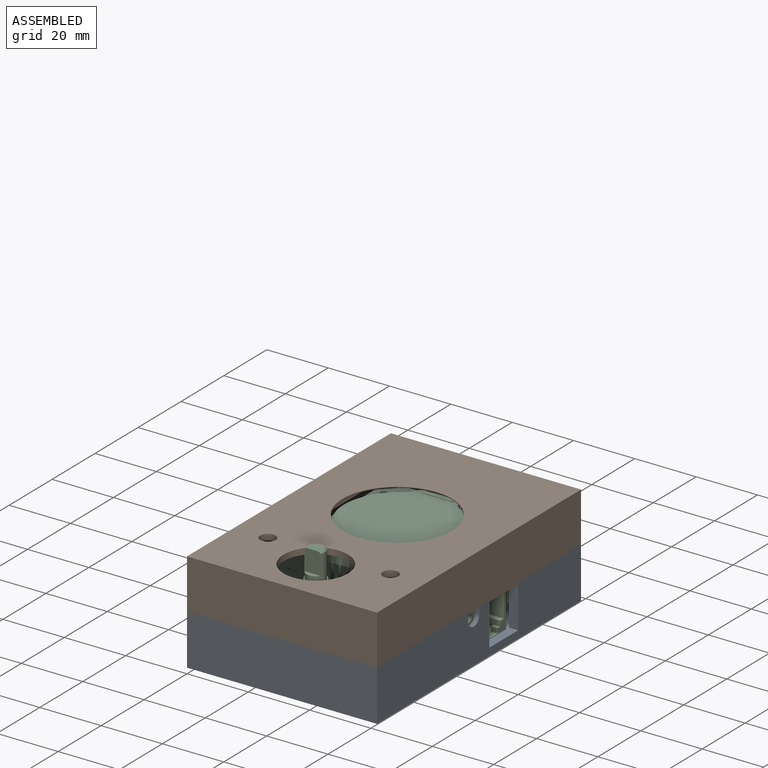
[diagram: assembled view]
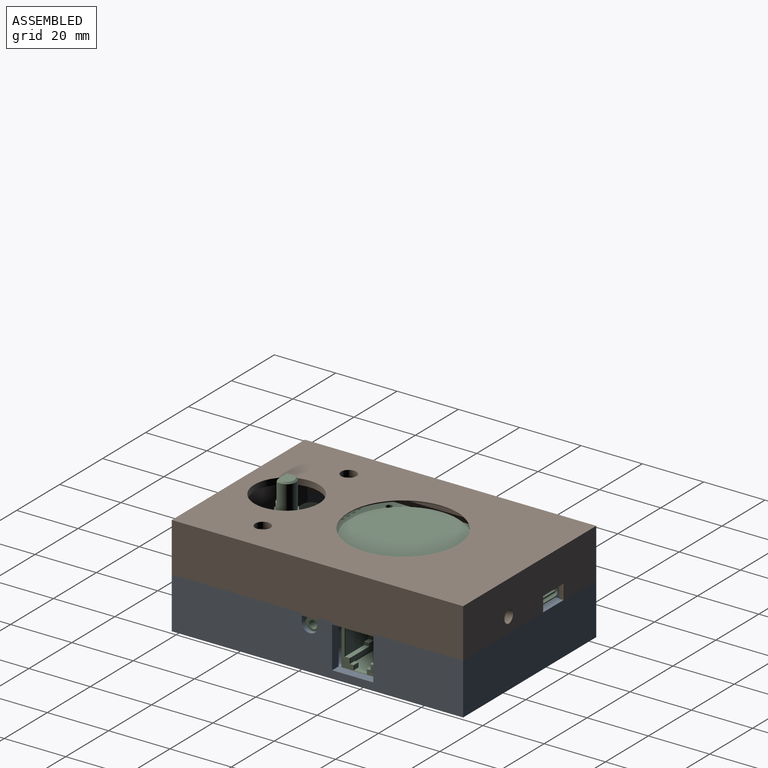
[diagram: assembled view, second angle]
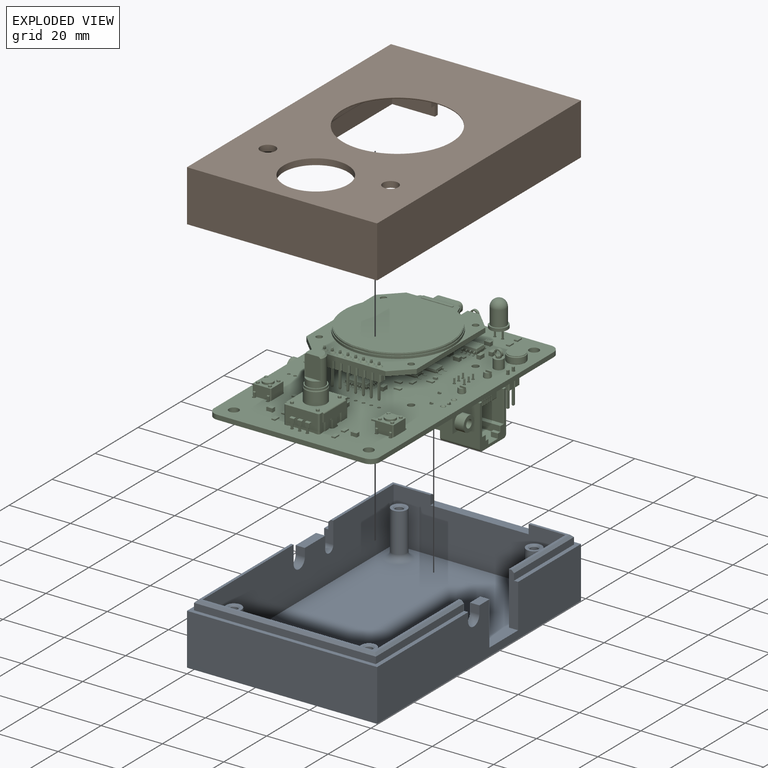
[diagram: exploded view]
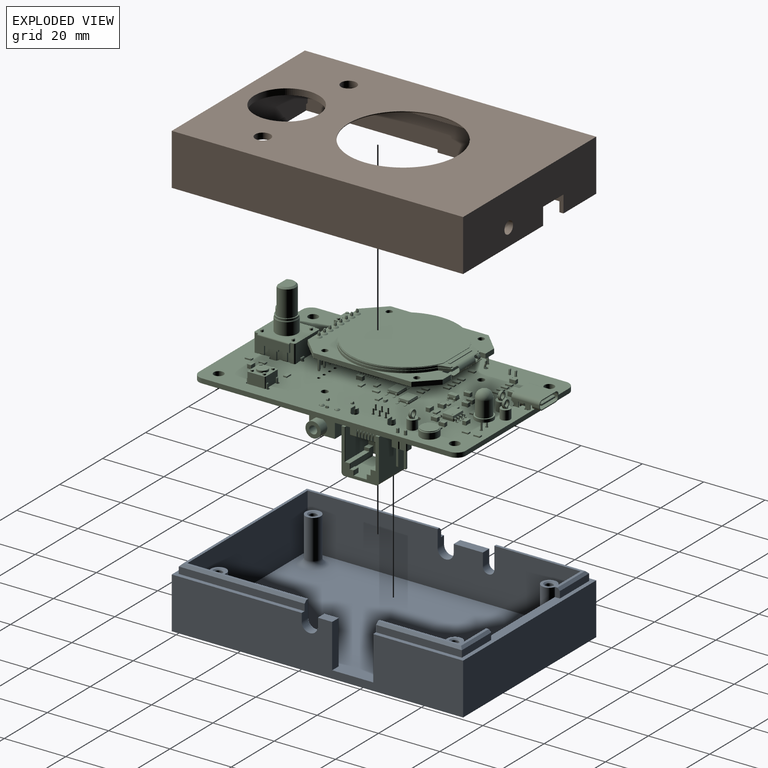
[diagram: exploded view, second angle]
FCSTD DOCUMENT  (FreeCAD 1.0R39319 (Git))
Label: Assembly
License: All rights reserved
objects: App::FeaturePython×4, App::Link×3, Assembly::JointGroup×1, Assembly::AssemblyObject×1
EXTERNAL_REF file=PCB_Rev2.FCStd obj=PCB_Rev2_1
EXTERNAL_REF file=Enclosure.FCStd obj=Body
EXTERNAL_REF file=Enclosure.FCStd obj=Body001

FEATURE [App::Link] PCB_Rev2_1  label="PCB_Rev2 1"
  LinkPlacement = pos=(-39,128,14) rot=(0,0,1;0rad)
  LinkedObject = -> <external PCB_Rev2.FCStd>#PCB_Rev2_1
  Placement = pos=(-39,128,14) rot=(0,0,1;0rad)
FEATURE [App::Link] Body
  LinkPlacement = pos=(4.6563e-05,0,0) rot=(0,0,1;0rad)
  LinkedObject = -> <external Enclosure.FCStd>#Body
  Placement = pos=(4.6563e-05,0,0) rot=(0,0,1;0rad)
FEATURE [App::FeaturePython] Joint  label="Distance"  # Assembly joint (typed FeaturePython)
  Activated = true
  AngleMax = 0
  AngleMin = 0
  Detach1 = false
  Detach2 = false
  Distance = 0
  Distance2 = 0
  EnableAngleMax = false
  EnableAngleMin = false
  EnableLengthMax = false
  EnableLengthMin = false
  JointType = 5 (Distance)
  LengthMax = 0
  LengthMin = 0
  Placement1 = pos=(69.9746,-80.5124,0) rot=(0,0,1;0rad)
  Placement2 = pos=(9,86,14) rot=(0,0,1;0rad)
  Reference1 = -> Assembly [PCB_Rev2_1.Part__Feature175.Face4,PCB_Rev2_1.Part__Feature175.Face4]
  Reference2 = -> Assembly [Body.Face56,Body.Vertex99]
FEATURE [App::FeaturePython] Joint001  label="Cylindrical"  # Assembly joint (typed FeaturePython)
  Activated = true
  AngleMax = 0
  AngleMin = 0
  Detach1 = false
  Detach2 = false
  Distance = 0
  Distance2 = 0
  EnableAngleMax = false
  EnableAngleMin = false
  EnableLengthMax = false
  EnableLengthMin = false
  JointType = 2 (Cylindrical)
  LengthMax = 0
  LengthMin = 0
  Placement1 = pos=(92,-119,0.755) rot=(-0.707107,0.707107,0;3.14159rad)
  Placement2 = pos=(53,9,14) rot=(0,0,1;0rad)
  Reference1 = -> Assembly [PCB_Rev2_1.Part__Feature175.Face40,PCB_Rev2_1.Part__Feature175.Face40]
  Reference2 = -> Assembly [Body.?Face36,Body.?Edge3]
FEATURE [App::FeaturePython] Joint002  label="Cylindrical001"  # Assembly joint (typed FeaturePython)
  Activated = true
  AngleMax = 0
  AngleMin = 0
  Detach1 = false
  Detach2 = false
  Distance = 0
  Distance2 = 0
  EnableAngleMax = false
  EnableAngleMin = false
  EnableLengthMax = false
  EnableLengthMin = false
  JointType = 2 (Cylindrical)
  LengthMax = 0
  LengthMin = 0
  Placement1 = pos=(48,-42,0.755) rot=(-0.707107,0.707107,0;3.14159rad)
  Placement2 = pos=(9,86,13.6) rot=(0,0,1;0rad)
  Reference1 = -> Assembly [PCB_Rev2_1.Part__Feature175.Face63,PCB_Rev2_1.Part__Feature175.Face63]
  Reference2 = -> Assembly [Body.Face65,Body.Edge2]
FEATURE [App::FeaturePython] GroundedJoint  # Assembly grounded joint (typed FeaturePython)
  ObjectToGround = -> Body
  Placement = pos=(4.6563e-05,0,0) rot=(0.999339,-0.024964,-0.026437;0rad)
FEATURE [Assembly::JointGroup] Joints
  Group = -> [Joint,Joint001,Joint002,GroundedJoint]
FEATURE [App::Link] C1014
  LinkPlacement = pos=(0,0,14) rot=(0,0,1;0rad)
  LinkedObject = -> <external Enclosure.FCStd>#Body001
  Placement = pos=(0,0,14) rot=(0,0,1;0rad)
FEATURE [Assembly::AssemblyObject] Assembly
  Group = -> [Joints,PCB_Rev2_1,Body,Joint,Joint001,Joint002,GroundedJoint,C1014]
  Origin = -> Origin
  Type = Assembly

RESOLVED EXTERNAL PARTS (link-assembly join: the EXTERNAL_REF files above that resolve inside this repo's crawl, each included once):
---- part Enclosure.FCStd = doc fcstd_8a5a7e8943d4 ----
FCSTD DOCUMENT  (FreeCAD 1.0R39319 (Git))
Label: Enclosure
License: All rights reserved
objects: Sketcher::SketchObject×13, PartDesign::Pad×7, PartDesign::Pocket×6, PartDesign::Chamfer×3, PartDesign::Fillet×2, PartDesign::Body×2
note: 82 computed .brp shape members not serialized (recipe doc carries the construction recipe); baked Part::Feature solids carry a one-line shape summary decoded from their .brp

FEATURE [Sketcher::SketchObject] Sketch
  ArcFitTolerance = 1e-06
  AttachmentSupport = -> [XY_Plane]
  FullyConstrained = true
  MakeInternals = false
  MapMode = 5
  sketch-geometry (22):
    g0: LineSegment [constr] StartX=4 StartY=4 StartZ=0 EndX=58 EndY=4 EndZ=0
    g1: LineSegment [constr] StartX=58 StartY=4 StartZ=0 EndX=58 EndY=91 EndZ=0
    g2: LineSegment [constr] StartX=58 StartY=91 StartZ=0 EndX=4 EndY=91 EndZ=0
    g3: LineSegment [constr] StartX=4 StartY=91 StartZ=0 EndX=4 EndY=4 EndZ=0
    g4: LineSegment StartX=0 StartY=0 StartZ=0 EndX=62 EndY=0 EndZ=0
    g5: LineSegment StartX=62 StartY=0 StartZ=0 EndX=62 EndY=95 EndZ=0
    g6: LineSegment StartX=62 StartY=95 StartZ=0 EndX=0 EndY=95 EndZ=0
    g7: LineSegment StartX=0 StartY=95 StartZ=0 EndX=0 EndY=0 EndZ=0
    g8: LineSegment StartX=3 StartY=92 StartZ=0 EndX=3 EndY=3 EndZ=0
    g9: LineSegment StartX=3 StartY=3 StartZ=0 EndX=59 EndY=3 EndZ=0
    g10: LineSegment StartX=59 StartY=3 StartZ=0 EndX=59 EndY=92 EndZ=0
    g11: LineSegment StartX=59 StartY=92 StartZ=0 EndX=3 EndY=92 EndZ=0
    g12: GeomPoint X=31 Y=92 Z=0
    g13: GeomPoint X=31 Y=91 Z=0
    g14: GeomPoint X=58 Y=47.5 Z=0
    g15: GeomPoint X=59 Y=47.5 Z=0
    g16: GeomPoint X=31 Y=95 Z=0
    g17: GeomPoint X=62 Y=47.5 Z=0
    g18: LineSegment [constr] StartX=58 StartY=47.5 StartZ=0 EndX=59 EndY=47.5 EndZ=0
    g19: LineSegment [constr] StartX=59 StartY=47.5 StartZ=0 EndX=62 EndY=47.5 EndZ=0
    g20: LineSegment [constr] StartX=31 StartY=91 StartZ=0 EndX=31 EndY=92 EndZ=0
    g21: LineSegment [constr] StartX=31 StartY=92 StartZ=0 EndX=31 EndY=95 EndZ=0
  constraints (49):
    c: Coincident(g0,g1)
    c: Coincident(g1,g2)
    c: Coincident(g2,g3)
    c: Coincident(g3,g0)
    c: Horizontal(g0)
    c: Horizontal(g2)
    c: Vertical(g1)
    c: Vertical(g3)
    c: DistanceX(g2,g2) = 54
    c: DistanceY(g3,g3) = 87
    c: Coincident(g4,g5)
    c: Coincident(g5,g6)
    c: Coincident(g6,g7)
    c: Coincident(g7,g4)
    c: Horizontal(g4)
    c: Horizontal(g6)
    c: Vertical(g5)
    c: Vertical(g7)
    c: Coincident(g4,g-1)
    c: Coincident(g8,g9)
    c: Coincident(g9,g10)
    c: Coincident(g10,g11)
    c: Coincident(g11,g8)
    c: Vertical(g8)
    c: Vertical(g10)
    c: Horizontal(g9)
    c: Horizontal(g11)
    c: Symmetric(g11,g11,g12)
    c: Symmetric(g2,g2,g13)
    c: Symmetric(g1,g1,g14)
    c: Symmetric(g10,g10,g15)
    c: Symmetric(g6,g6,g16)
    c: Symmetric(g5,g5,g17)
    c: Coincident(g18,g14)
    c: Coincident(g18,g15)
    c: Coincident(g19,g15)
    c: Coincident(g19,g17)
    c: Coincident(g20,g13)
    c: Coincident(g20,g12)
    c: Coincident(g21,g12)
    c: Coincident(g21,g16)
    c: Vertical(g21)
    c: Vertical(g20)
    c: Horizontal(g19)
    c: Horizontal(g18)
    c: DistanceY(g20,g20) = 1
    c: DistanceX(g18,g18) = 1
    c: Distance(g19,g19) = 3
    c: Distance(g21,g21) = 3
FEATURE [PartDesign::Pad] Pad
  Direction = (0,0,1)
  Length = 14.75
  Length2 = 10
  Profile = -> Sketch
  ReferenceAxis = -> Sketch [N_Axis]
  Refine = true
  Suppressed = false
  Type = 0
FEATURE [Sketcher::SketchObject] Sketch001
  ArcFitTolerance = 1e-06
  AttachmentSupport = -> [Pad]
  ExternalGeometry = -> [Pad]
  FullyConstrained = true
  MakeInternals = false
  MapMode = 5
  Placement = pos=(0,0,0) rot=(1,0,0;3.14159rad)
  sketch-geometry (4):
    g0: LineSegment StartX=0 StartY=0 StartZ=0 EndX=0 EndY=-95 EndZ=0
    g1: LineSegment StartX=0 StartY=-95 StartZ=0 EndX=62 EndY=-95 EndZ=0
    g2: LineSegment StartX=62 StartY=-95 StartZ=0 EndX=62 EndY=0 EndZ=0
    g3: LineSegment StartX=62 StartY=0 StartZ=0 EndX=0 EndY=0 EndZ=0
  constraints (10):
    c: Coincident(g0,g1)
    c: Coincident(g1,g2)
    c: Coincident(g2,g3)
    c: Coincident(g3,g0)
    c: Vertical(g0)
    c: Vertical(g2)
    c: Horizontal(g1)
    c: Horizontal(g3)
    c: Coincident(g0,g-1)
    c: Coincident(g1,g-3)
FEATURE [PartDesign::Pad] Pad001
  BaseFeature = -> Pad
  Direction = (0,0,-1)
  Length = 2
  Length2 = 10
  Profile = -> Sketch001
  ReferenceAxis = -> Sketch001 [N_Axis]
  Refine = true
  Suppressed = false
  Type = 0
FEATURE [Sketcher::SketchObject] Sketch002
  ArcFitTolerance = 1e-06
  AttachmentSupport = -> [Pad001]
  ExternalGeometry = -> [Pad001]
  FullyConstrained = true
  MakeInternals = false
  MapMode = 5
  sketch-geometry (25):
    g0: Circle CenterX=9 CenterY=86 CenterZ=0 NormalX=0 NormalY=0 NormalZ=1 AngleXU=0 Radius=2.5
    g1: Circle CenterX=9 CenterY=86 CenterZ=0 NormalX=0 NormalY=0 NormalZ=1 AngleXU=0 Radius=1.25
    g2: LineSegment [constr] StartX=58 StartY=4 StartZ=0 EndX=58 EndY=91 EndZ=0
    g3: LineSegment [constr] StartX=58 StartY=91 StartZ=0 EndX=4 EndY=91 EndZ=0
    g4: LineSegment [constr] StartX=4 StartY=91 StartZ=0 EndX=4 EndY=4 EndZ=0
    g5: LineSegment [constr] StartX=4 StartY=4 StartZ=0 EndX=58 EndY=4 EndZ=0
    g6: GeomPoint [constr] X=31 Y=91 Z=0
    g7: GeomPoint [constr] X=31 Y=92 Z=0
    g8: GeomPoint [constr] X=59 Y=47.5 Z=0
    g9: GeomPoint [constr] X=58 Y=47.5 Z=0
    g10: LineSegment [constr] StartX=58 StartY=47.5 StartZ=0 EndX=59 EndY=47.5 EndZ=0
    g11: LineSegment [constr] StartX=31 StartY=91 StartZ=0 EndX=31 EndY=92 EndZ=0
    g12: LineSegment [constr] StartX=4 StartY=91 StartZ=0 EndX=9 EndY=86 EndZ=0
    g13: LineSegment [constr] StartX=58 StartY=91 StartZ=0 EndX=53 EndY=86 EndZ=0
    g14: LineSegment [constr] StartX=58 StartY=4 StartZ=0 EndX=53 EndY=9 EndZ=0
    g15: LineSegment [constr] StartX=4 StartY=4 StartZ=0 EndX=9 EndY=9 EndZ=0
    g16: LineSegment [constr] StartX=53 StartY=86 StartZ=0 EndX=9 EndY=86 EndZ=0
    g17: LineSegment [constr] StartX=53 StartY=86 StartZ=0 EndX=53 EndY=9 EndZ=0
    g18: LineSegment [constr] StartX=53 StartY=9 StartZ=0 EndX=9 EndY=9 EndZ=0
    g19: Circle CenterX=53 CenterY=86 CenterZ=0 NormalX=0 NormalY=0 NormalZ=1 AngleXU=0 Radius=1.25
    g20: Circle CenterX=53 CenterY=86 CenterZ=0 NormalX=0 NormalY=0 NormalZ=1 AngleXU=0 Radius=2.5
    g21: Circle CenterX=53 CenterY=9 CenterZ=0 NormalX=0 NormalY=0 NormalZ=1 AngleXU=0 Radius=1.25
    g22: Circle CenterX=53 CenterY=9 CenterZ=0 NormalX=0 NormalY=0 NormalZ=1 AngleXU=0 Radius=2.5
    g23: Circle CenterX=9 CenterY=9 CenterZ=0 NormalX=0 NormalY=0 NormalZ=1 AngleXU=0 Radius=1.25
    g24: Circle CenterX=9 CenterY=9 CenterZ=0 NormalX=0 NormalY=0 NormalZ=1 AngleXU=0 Radius=2.5
  constraints (54):
    c: Coincident(g1,g0)
    c: Diameter(g1) = 2.5
    c: Diameter(g0) = 5
    c: Coincident(g2,g3)
    c: Coincident(g3,g4)
    c: Coincident(g4,g5)
    c: Coincident(g5,g2)
    c: Vertical(g2)
    c: Vertical(g4)
    c: Horizontal(g3)
    c: Horizontal(g5)
    c: DistanceX(g3,g3) = 54
    c: DistanceY(g2,g2) = 87
    c: Symmetric(g3,g3,g6)
    c: Symmetric(g-5,g-5,g7)
    c: Symmetric(g-4,g-4,g8)
    c: Symmetric(g2,g2,g9)
    c: Coincident(g10,g9)
    c: Coincident(g10,g8)
    c: Coincident(g11,g6)
    c: Coincident(g11,g7)
    c: Vertical(g11)
    c: Horizontal(g10)
    c: Coincident(g12,g3)
    c: Coincident(g12,g0)
    c: Coincident(g13,g2)
    c: Coincident(g14,g2)
    c: Coincident(g15,g4)
    c: Equal(g13,g14)
    c: Equal(g14,g15)
    c: Equal(g15,g12)
    c: DistanceX(g12,g12) = 5
    c: DistanceY(g12,g12) = 5
    c: Coincident(g16,g13)
    c: Coincident(g16,g0)
    c: Horizontal(g16)
    c: Coincident(g17,g13)
    c: Coincident(g17,g14)
    c: Vertical(g17)
    c: Coincident(g18,g14)
    c: Coincident(g18,g15)
    c: Horizontal(g18)
    c: Coincident(g19,g13)
    c: Coincident(g20,g13)
    c: Coincident(g21,g14)
    c: Coincident(g22,g14)
    c: Coincident(g23,g15)
    c: Coincident(g24,g15)
    c: Equal(g19,g23)
    c: Equal(g23,g21)
    c: Equal(g21,g1)
    c: Equal(g0,g20)
    c: Equal(g20,g22)
    c: Equal(g22,g24)
FEATURE [PartDesign::Pad] Pad002
  BaseFeature = -> Pad001
  Direction = (0,0,1)
  Length = 14.75
  Length2 = 10
  Profile = -> Sketch002
  ReferenceAxis = -> Sketch002 [N_Axis]
  Refine = true
  Suppressed = false
  Type = 0
FEATURE [Sketcher::SketchObject] Sketch003
  ArcFitTolerance = 1e-06
  AttachmentSupport = -> [Pad002]
  ExternalGeometry = -> [Pad002]
  FullyConstrained = true
  MakeInternals = false
  MapMode = 5
  Placement = pos=(0,0,0) rot=(0.57735,-0.57735,-0.57735;2.0944rad)
  expr: Constraints[15] = 5.25 mm / 2
  expr: Constraints[32] = 3.75 mm / 2
  sketch-geometry (16):
    g0: LineSegment [constr] StartX=-91 StartY=14.75 StartZ=0 EndX=-4 EndY=14.75 EndZ=0
    g1: LineSegment [constr] StartX=-91 StartY=14.75 StartZ=0 EndX=-95 EndY=14.75 EndZ=0
    g2: LineSegment [constr] StartX=-4 StartY=14.75 StartZ=0 EndX=0 EndY=14.75 EndZ=0
    g3: LineSegment [constr] StartX=-62 StartY=10.7 StartZ=0 EndX=-91 EndY=14.75 EndZ=0
    g4: LineSegment [constr] StartX=-48 StartY=14.75 StartZ=0 EndX=-48 EndY=12.125 EndZ=0
    g5: LineSegment [constr] StartX=-83.5 StartY=14.75 StartZ=0 EndX=-48 EndY=14.75 EndZ=0
    g6: ArcOfCircle CenterX=-48 CenterY=12.125 CenterZ=0 NormalX=0 NormalY=0 NormalZ=1 AngleXU=0 Radius=2.625 StartAngle=3.14159 EndAngle=6.28319
    g7: LineSegment StartX=-50.625 StartY=12.125 StartZ=0 EndX=-50.625 EndY=14.75 EndZ=0
    g8: LineSegment StartX=-45.375 StartY=12.125 StartZ=0 EndX=-45.375 EndY=14.75 EndZ=0
    g9: LineSegment [constr] StartX=-50.625 StartY=12.125 StartZ=0 EndX=-45.375 EndY=12.125 EndZ=0
    g10: LineSegment StartX=-50.625 StartY=14.75 StartZ=0 EndX=-45.375 EndY=14.75 EndZ=0
    g11: ArcOfCircle CenterX=-62 CenterY=10.7 CenterZ=0 NormalX=0 NormalY=0 NormalZ=1 AngleXU=0 Radius=1.875 StartAngle=3.14159 EndAngle=6.28319
    g12: LineSegment StartX=-63.875 StartY=10.7 StartZ=0 EndX=-63.875 EndY=14.75 EndZ=0
    g13: LineSegment StartX=-60.125 StartY=10.7 StartZ=0 EndX=-60.125 EndY=14.75 EndZ=0
    g14: LineSegment StartX=-60.125 StartY=14.75 StartZ=0 EndX=-63.875 EndY=14.75 EndZ=0
    g15: LineSegment [constr] StartX=-63.875 StartY=10.7 StartZ=0 EndX=-60.125 EndY=10.7 EndZ=0
  constraints (46):
    c: Horizontal(g0)
    c: DistanceX(g0,g0) = 87
    c: Coincident(g1,g0)
    c: Coincident(g1,g-5)
    c: Coincident(g2,g0)
    c: Coincident(g2,g-4)
    c: Equal(g2,g1)
    c: Horizontal(g1)
    c: Coincident(g3,g0)
    c: DistanceX(g3,g3) = 29
    c: Vertical(g4)
    c: Coincident(g5,g-3)
    c: Coincident(g5,g4)
    c: Horizontal(g5)
    c: DistanceY(g4,g4) = 2.625
    c: Radius(g6) = 2.625
    c: Coincident(g4,g6)
    c: DistanceX(g0,g4) = 43
    c: Coincident(g7,g6)
    c: Coincident(g8,g6)
    c: Vertical(g8)
    c: PointOnObject(g8,g0)
    c: PointOnObject(g7,g0)
    c: Vertical(g7)
    c: Coincident(g9,g6)
    c: Coincident(g9,g6)
    c: Horizontal(g9)
    c: PointOnObject(g4,g9)
    c: Coincident(g10,g7)
    c: Coincident(g10,g8)
    c: DistanceY(g3,g3) = 4.05
    c: Coincident(g11,g3)
    c: Radius(g11) = 1.875
    c: Coincident(g12,g11)
    c: PointOnObject(g12,g0)
    c: Coincident(g13,g11)
    c: PointOnObject(g13,g0)
    c: Coincident(g14,g13)
    c: Coincident(g14,g12)
    c: Coincident(g15,g11)
    c: Coincident(g15,g11)
    c: Horizontal(g15)
    c: Vertical(g13)
    c: Vertical(g12)
    c: PointOnObject(g3,g15)
    c: DistanceX(g3,g-1) = 62
FEATURE [PartDesign::Pocket] Pocket
  BaseFeature = -> Pad002
  Direction = (1,0,0)
  Length = 5
  Length2 = 5
  Profile = -> Sketch003
  ReferenceAxis = -> Sketch003 [N_Axis]
  Refine = true
  Suppressed = false
  Type = 2
FEATURE [Sketcher::SketchObject] Sketch004
  ArcFitTolerance = 1e-06
  AttachmentSupport = -> [Pocket]
  ExternalGeometry = -> [Pocket]
  FullyConstrained = true
  MakeInternals = false
  MapMode = 5
  Placement = pos=(62,0,4.79e-14) rot=(0.57735,0.57735,0.57735;2.0944rad)
  expr: Constraints[8] = 5.25 mm / 2
  sketch-geometry (13):
    g0: LineSegment [constr] StartX=0 StartY=14.75 StartZ=0 EndX=4 EndY=14.75 EndZ=0
    g1: LineSegment [constr] StartX=4 StartY=14.75 StartZ=0 EndX=91 EndY=14.75 EndZ=0
    g2: LineSegment [constr] StartX=91 StartY=14.75 StartZ=0 EndX=95 EndY=14.75 EndZ=0
    g3: ArcOfCircle CenterX=45 CenterY=12.125 CenterZ=0 NormalX=0 NormalY=0 NormalZ=1 AngleXU=0 Radius=2.625 StartAngle=3.14159 EndAngle=6.28319
    g4: LineSegment StartX=42.375 StartY=12.125 StartZ=0 EndX=42.375 EndY=14.75 EndZ=0
    g5: LineSegment StartX=47.625 StartY=12.125 StartZ=0 EndX=47.625 EndY=14.75 EndZ=0
    g6: LineSegment StartX=42.375 StartY=14.75 StartZ=0 EndX=47.625 EndY=14.75 EndZ=0
    g7: LineSegment [constr] StartX=42.375 StartY=12.125 StartZ=0 EndX=47.625 EndY=12.125 EndZ=0
    g8: LineSegment StartX=52.3 StartY=14.75 StartZ=0 EndX=52.3 EndY=0.5 EndZ=0
    g9: LineSegment StartX=52.3 StartY=0.5 StartZ=0 EndX=65.7 EndY=0.5 EndZ=0
    g10: LineSegment StartX=65.7 StartY=0.5 StartZ=0 EndX=65.7 EndY=14.75 EndZ=0
    g11: LineSegment StartX=65.7 StartY=14.75 StartZ=0 EndX=52.3 EndY=14.75 EndZ=0
    g12: GeomPoint X=59 Y=0.5 Z=0
  constraints (36):
    c: Coincident(g0,g-3)
    c: Coincident(g1,g0)
    c: Horizontal(g1)
    c: Coincident(g2,g1)
    c: Coincident(g2,g-4)
    c: Equal(g0,g2)
    c: Horizontal(g0)
    c: DistanceX(g1,g1) = 87
    c: Radius(g3) = 2.625
    c: Coincident(g4,g3)
    c: Coincident(g5,g3)
    c: PointOnObject(g5,g1)
    c: PointOnObject(g4,g1)
    c: Vertical(g4)
    c: Vertical(g5)
    c: Coincident(g6,g4)
    c: Coincident(g6,g5)
    c: Coincident(g7,g3)
    c: Coincident(g7,g3)
    c: PointOnObject(g3,g7)
    c: Horizontal(g7)
    c: DistanceX(g3,g1) = 46
    c: DistanceY(g3,g1) = 2.625
    c: Coincident(g8,g9)
    c: Coincident(g9,g10)
    c: Coincident(g10,g11)
    c: Coincident(g11,g8)
    c: Vertical(g8)
    c: Vertical(g10)
    c: Horizontal(g9)
    c: Horizontal(g11)
    c: PointOnObject(g8,g1)
    c: Symmetric(g9,g9,g12)
    c: DistanceX(g12,g1) = 32
    c: DistanceX(g9,g9) = 13.4
    c: DistanceY(g10,g10) = 14.25
FEATURE [PartDesign::Pocket] Pocket001
  BaseFeature = -> Pocket
  Direction = (-1,0,0)
  Length = 5
  Length2 = 5
  Profile = -> Sketch004
  ReferenceAxis = -> Sketch004 [N_Axis]
  Refine = true
  Suppressed = false
  Type = 2
FEATURE [Sketcher::SketchObject] Sketch005
  ArcFitTolerance = 1e-06
  AttachmentSupport = -> [XY_Plane001]
  FullyConstrained = true
  MakeInternals = false
  MapMode = 5
  sketch-geometry (14):
    g0: LineSegment StartX=0 StartY=0 StartZ=0 EndX=62 EndY=0 EndZ=0
    g1: LineSegment StartX=62 StartY=0 StartZ=0 EndX=62 EndY=95 EndZ=0
    g2: LineSegment StartX=62 StartY=95 StartZ=0 EndX=0 EndY=95 EndZ=0
    g3: LineSegment StartX=0 StartY=95 StartZ=0 EndX=0 EndY=0 EndZ=0
    g4: LineSegment StartX=59 StartY=92 StartZ=0 EndX=3 EndY=92 EndZ=0
    g5: LineSegment StartX=3 StartY=92 StartZ=0 EndX=3 EndY=3 EndZ=0
    g6: LineSegment StartX=3 StartY=3 StartZ=0 EndX=59 EndY=3 EndZ=0
    g7: LineSegment StartX=59 StartY=3 StartZ=0 EndX=59 EndY=92 EndZ=0
    g8: GeomPoint X=31 Y=92 Z=0
    g9: GeomPoint X=31 Y=95 Z=0
    g10: GeomPoint X=62 Y=47.5 Z=0
    g11: GeomPoint X=59 Y=47.5 Z=0
    g12: LineSegment [constr] StartX=59 StartY=47.5 StartZ=0 EndX=62 EndY=47.5 EndZ=0
    g13: LineSegment [constr] StartX=31 StartY=92 StartZ=0 EndX=31 EndY=95 EndZ=0
  constraints (31):
    c: Coincident(g0,g1)
    c: Coincident(g1,g2)
    c: Coincident(g2,g3)
    c: Coincident(g3,g0)
    c: Horizontal(g0)
    c: Horizontal(g2)
    c: Vertical(g1)
    c: Vertical(g3)
    c: Coincident(g0,g-1)
    c: Coincident(g4,g5)
    c: Coincident(g5,g6)
    c: Coincident(g6,g7)
    c: Coincident(g7,g4)
    c: Horizontal(g4)
    c: Horizontal(g6)
    c: Vertical(g5)
    c: Vertical(g7)
    c: DistanceX(g2,g2) = 62
    c: DistanceY(g1,g1) = 95
    c: Symmetric(g4,g4,g8)
    c: Symmetric(g2,g2,g9)
    c: Symmetric(g1,g1,g10)
    c: Symmetric(g7,g7,g11)
    c: Coincident(g12,g11)
    c: Coincident(g12,g10)
    c: Coincident(g13,g8)
    c: Coincident(g13,g9)
    c: Vertical(g13)
    c: Horizontal(g12)
    c: Distance(g12,g12) = 3
    c: Equal(g12,g13)
FEATURE [PartDesign::Pad] Pad003
  Direction = (0,0,1)
  Length = 14.8
  Length2 = 10
  Profile = -> Sketch005
  ReferenceAxis = -> Sketch005 [N_Axis]
  Refine = true
  Suppressed = false
  Type = 0
  expr: Length = (1.6 + 12 + 3 - 2 + 0.2) * 1 mm
FEATURE [Sketcher::SketchObject] Sketch006
  ArcFitTolerance = 1e-06
  AttachmentSupport = -> [Pocket001]
  ExternalGeometry = -> [Pocket001]
  FullyConstrained = true
  MakeInternals = false
  MapMode = 5
  Placement = pos=(0,0,14.75) rot=(0,0,1;0rad)
  sketch-geometry (27):
    g0: LineSegment StartX=3 StartY=92 StartZ=0 EndX=3 EndY=63.875 EndZ=0
    g1: LineSegment StartX=3 StartY=63.875 StartZ=0 EndX=1.35 EndY=63.875 EndZ=0
    g2: LineSegment StartX=1.35 StartY=63.875 StartZ=0 EndX=1.35 EndY=93.65 EndZ=0
    g3: LineSegment StartX=1.35 StartY=93.65 StartZ=0 EndX=15 EndY=93.65 EndZ=0
    g4: LineSegment StartX=60.65 StartY=93.65 StartZ=0 EndX=60.65 EndY=65.7 EndZ=0
    g5: LineSegment StartX=60.65 StartY=65.7 StartZ=0 EndX=59 EndY=65.7 EndZ=0
    g6: LineSegment StartX=59 StartY=65.7 StartZ=0 EndX=59 EndY=92 EndZ=0
    g7: LineSegment StartX=59 StartY=92 StartZ=0 EndX=47 EndY=92 EndZ=0
    g8: LineSegment StartX=59 StartY=42.375 StartZ=0 EndX=60.65 EndY=42.375 EndZ=0
    g9: LineSegment StartX=60.65 StartY=42.375 StartZ=0 EndX=60.65 EndY=1.35 EndZ=0
    g10: LineSegment StartX=60.65 StartY=1.35 StartZ=0 EndX=1.35 EndY=1.35 EndZ=0
    g11: LineSegment StartX=1.35 StartY=1.35 StartZ=0 EndX=1.35 EndY=45.375 EndZ=0
    g12: LineSegment StartX=1.35 StartY=45.375 StartZ=0 EndX=3 EndY=45.375 EndZ=0
    g13: LineSegment StartX=3 StartY=45.375 StartZ=0 EndX=3 EndY=3 EndZ=0
    g14: LineSegment StartX=3 StartY=3 StartZ=0 EndX=59 EndY=3 EndZ=0
    g15: LineSegment StartX=59 StartY=3 StartZ=0 EndX=59 EndY=42.375 EndZ=0
    g16: GeomPoint X=31 Y=92 Z=0
    g17: GeomPoint X=31 Y=93.65 Z=0
    g18: LineSegment [constr] StartX=31 StartY=92 StartZ=0 EndX=31 EndY=93.65 EndZ=0
    g19: GeomPoint [constr] X=31 Y=3 Z=0
    g20: GeomPoint [constr] X=31 Y=1.35 Z=0
    g21: LineSegment [constr] StartX=31 StartY=3 StartZ=0 EndX=31 EndY=1.35 EndZ=0
    g22: LineSegment StartX=15 StartY=92 StartZ=0 EndX=15 EndY=93.65 EndZ=0
    g23: LineSegment StartX=47 StartY=92 StartZ=0 EndX=47 EndY=93.65 EndZ=0
    g24: LineSegment StartX=15 StartY=92 StartZ=0 EndX=3 EndY=92 EndZ=0
    g25: LineSegment StartX=47 StartY=93.65 StartZ=0 EndX=60.65 EndY=93.65 EndZ=0
    g26: LineSegment [constr] StartX=47 StartY=93.65 StartZ=0 EndX=15 EndY=93.65 EndZ=0
  constraints (68):
    c: Coincident(g-6,g0)
    c: Coincident(g0,g-6)
    c: Coincident(g0,g1)
    c: Coincident(g1,g2)
    c: Vertical(g2)
    c: Coincident(g2,g3)
    c: Horizontal(g3)
    c: Coincident(g25,g4)
    c: Vertical(g4)
    c: Coincident(g4,g5)
    c: Coincident(g5,g-7)
    c: Coincident(g5,g6)
    c: Coincident(g6,g-7)
    c: Coincident(g6,g7)
    c: Coincident(g24,g0)
    c: Coincident(g-8,g8)
    c: Coincident(g8,g9)
    c: Vertical(g9)
    c: Coincident(g9,g10)
    c: Horizontal(g10)
    c: Coincident(g10,g11)
    c: Vertical(g11)
    c: Coincident(g11,g12)
    c: Coincident(g12,g-5)
    c: Coincident(g12,g13)
    c: Coincident(g13,g-5)
    c: Coincident(g13,g14)
    c: Coincident(g14,g-8)
    c: Coincident(g14,g15)
    c: Coincident(g15,g8)
    c: Horizontal(g8)
    c: Equal(g8,g5)
    c: Horizontal(g5)
    c: Distance(g8,g8) = 1.65
    c: Horizontal(g12)
    c: Equal(g12,g8)
    c: Horizontal(g1)
    c: Equal(g1,g5)
    c: Symmetric(g7,g24,g16)
    c: Symmetric(g3,g25,g17)
    c: Coincident(g18,g16)
    c: Coincident(g18,g17)
    c: Equal(g18,g1)
    c: Symmetric(g14,g14,g19)
    c: Symmetric(g10,g10,g20)
    c: Coincident(g21,g19)
    c: Coincident(g21,g20)
    c: Equal(g21,g12)
    c: PointOnObject(g22,g24)
    c: Vertical(g22)
    c: PointOnObject(g23,g25)
    c: Vertical(g23)
    c: PointOnObject(g24,g22)
    c: PointOnObject(g25,g23)
    c: Coincident(g3,g22)
    c: Coincident(g7,g23)
    c: Horizontal(g25)
    c: Coincident(g26,g23)
    c: Coincident(g26,g3)
    c: Horizontal(g26)
    c: Horizontal(g24)
    c: Horizontal(g7)
    c: DistanceX(g24,g24) = 12
    c: Equal(g7,g24)
    c: DistanceY(g0,g0) = 28.125
    c: DistanceY(g13,g13) = 42.375
    c: DistanceY(g6,g6) = 26.3
    c: DistanceY(g15,g15) = 39.375
FEATURE [PartDesign::Pad] Pad004
  BaseFeature = -> Pocket001
  Direction = (0,0,1)
  Length = 3
  Length2 = 10
  Profile = -> Sketch006
  ReferenceAxis = -> Sketch006 [N_Axis]
  Refine = true
  Suppressed = false
  Type = 0
FEATURE [PartDesign::Chamfer] Chamfer
  Angle = 45
  Base = -> Pad004 [Edge78,Edge76,Edge69,Edge67,Edge85,Edge83,Edge81]
  BaseFeature = -> Pad004
  ChamferType = 0
  FlipDirection = false
  Refine = true
  Size = 0.8
  Size2 = 1
  SupportTransform = false
  Suppressed = false
  UseAllEdges = false
FEATURE [PartDesign::Chamfer] Chamfer001
  Angle = 45
  Base = -> Chamfer [Edge141,Edge139,Edge138,Edge140]
  BaseFeature = -> Chamfer
  ChamferType = 0
  FlipDirection = false
  Refine = true
  Size = 0.4
  Size2 = 1
  SupportTransform = false
  Suppressed = false
  UseAllEdges = false
FEATURE [PartDesign::Fillet] Fillet
  Base = -> Chamfer001 [Edge15,Edge14,Edge6,Edge13]
  BaseFeature = -> Chamfer001
  Radius = 2
  Refine = true
  SupportTransform = false
  Suppressed = false
  UseAllEdges = false
FEATURE [PartDesign::Body] Body  label="C1013"
  AllowCompound = false
  Group = -> [Sketch,Pad,Sketch001,Pad001,Sketch002,Pad002,Sketch003,Pocket,Sketch004,Pocket001,Sketch006,Pad004,Chamfer,Chamfer001,Fillet]
  Origin = -> Origin
  Tip = -> Fillet
FEATURE [Sketcher::SketchObject] Sketch007
  ArcFitTolerance = 1e-06
  AttachmentSupport = -> [Pad003]
  ExternalGeometry = -> [Pad003]
  FullyConstrained = true
  MakeInternals = false
  MapMode = 5
  Placement = pos=(0,0,14.8) rot=(0,0,1;0rad)
  sketch-geometry (4):
    g0: LineSegment StartX=62 StartY=95 StartZ=0 EndX=0 EndY=95 EndZ=0
    g1: LineSegment StartX=0 StartY=95 StartZ=0 EndX=0 EndY=0 EndZ=0
    g2: LineSegment StartX=0 StartY=0 StartZ=0 EndX=62 EndY=0 EndZ=0
    g3: LineSegment StartX=62 StartY=0 StartZ=0 EndX=62 EndY=95 EndZ=0
  constraints (10):
    c: Coincident(g0,g1)
    c: Coincident(g1,g2)
    c: Coincident(g2,g3)
    c: Coincident(g3,g0)
    c: Horizontal(g0)
    c: Horizontal(g2)
    c: Vertical(g1)
    c: Vertical(g3)
    c: Coincident(g0,g-4)
    c: Coincident(g1,g-1)
FEATURE [PartDesign::Pad] Pad005
  BaseFeature = -> Pad003
  Direction = (0,0,1)
  Length = 2
  Length2 = 10
  Profile = -> Sketch007
  ReferenceAxis = -> Sketch007 [N_Axis]
  Refine = true
  Suppressed = false
  Type = 0
FEATURE [Sketcher::SketchObject] Sketch008
  ArcFitTolerance = 1e-06
  AttachmentSupport = -> [Pad005]
  ExternalGeometry = -> [Pad005]
  FullyConstrained = true
  MakeInternals = false
  MapMode = 5
  Placement = pos=(0,0,16.8) rot=(0,0,1;0rad)
  sketch-geometry (28):
    g0: LineSegment [constr] StartX=0 StartY=0 StartZ=0 EndX=62 EndY=0 EndZ=0
    g1: LineSegment [constr] StartX=62 StartY=0 StartZ=0 EndX=62 EndY=95 EndZ=0
    g2: LineSegment [constr] StartX=62 StartY=95 StartZ=0 EndX=0 EndY=95 EndZ=0
    g3: LineSegment [constr] StartX=0 StartY=95 StartZ=0 EndX=0 EndY=0 EndZ=0
    g4: LineSegment [constr] StartX=58 StartY=91 StartZ=0 EndX=4 EndY=91 EndZ=0
    g5: LineSegment [constr] StartX=4 StartY=91 StartZ=0 EndX=4 EndY=4 EndZ=0
    g6: LineSegment [constr] StartX=4 StartY=4 StartZ=0 EndX=58 EndY=4 EndZ=0
    g7: LineSegment [constr] StartX=58 StartY=4 StartZ=0 EndX=58 EndY=91 EndZ=0
    g8: GeomPoint [constr] X=31 Y=95 Z=0
    g9: GeomPoint [constr] X=31 Y=91 Z=0
    g10: GeomPoint [constr] X=62 Y=47.5 Z=0
    g11: GeomPoint [constr] X=58 Y=47.5 Z=0
    g12: LineSegment [constr] StartX=58 StartY=47.5 StartZ=0 EndX=62 EndY=47.5 EndZ=0
    g13: LineSegment [constr] StartX=31 StartY=91 StartZ=0 EndX=31 EndY=95 EndZ=0
    g14: Circle CenterX=31 CenterY=15.75 CenterZ=0 NormalX=0 NormalY=0 NormalZ=1 AngleXU=0 Radius=10.5
    g15: LineSegment [constr] StartX=31 StartY=15.75 StartZ=0 EndX=58 EndY=4 EndZ=0
    g16: LineSegment [constr] StartX=31 StartY=15.75 StartZ=0 EndX=4 EndY=4 EndZ=0
    g17: Circle CenterX=11 CenterY=22 CenterZ=0 NormalX=0 NormalY=0 NormalZ=1 AngleXU=0 Radius=2.5
    g18: Circle CenterX=51 CenterY=22 CenterZ=0 NormalX=0 NormalY=0 NormalZ=1 AngleXU=0 Radius=2.5
    g19: LineSegment [constr] StartX=58 StartY=4 StartZ=0 EndX=51 EndY=22 EndZ=0
    g20: LineSegment [constr] StartX=11 StartY=22 StartZ=0 EndX=4 EndY=4 EndZ=0
    g21: LineSegment [constr] StartX=11 StartY=22 StartZ=0 EndX=51 EndY=22 EndZ=0
    g22: Circle CenterX=31 CenterY=53.74 CenterZ=0 NormalX=0 NormalY=0 NormalZ=1 AngleXU=0 Radius=17.8
    g23: LineSegment [constr] StartX=31 StartY=53.74 StartZ=0 EndX=4 EndY=4 EndZ=0
    g24: LineSegment [constr] StartX=31 StartY=53.74 StartZ=0 EndX=58 EndY=4 EndZ=0
    g25: LineSegment [constr] StartX=16 StartY=38.74 StartZ=0 EndX=16 EndY=68.74 EndZ=0
    g26: LineSegment [constr] StartX=16 StartY=38.74 StartZ=0 EndX=4 EndY=4 EndZ=0
    g27: LineSegment [constr] StartX=16 StartY=53.74 StartZ=0 EndX=31 EndY=53.74 EndZ=0
  constraints (64):
    c: Coincident(g0,g1)
    c: Coincident(g1,g2)
    c: Coincident(g2,g3)
    c: Coincident(g3,g0)
    c: Horizontal(g0)
    c: Horizontal(g2)
    c: Vertical(g1)
    c: Vertical(g3)
    c: Coincident(g0,g-1)
    c: Coincident(g1,g-3)
    c: Coincident(g4,g5)
    c: Coincident(g5,g6)
    c: Coincident(g6,g7)
    c: Coincident(g7,g4)
    c: Horizontal(g4)
    c: Horizontal(g6)
    c: Vertical(g5)
    c: Vertical(g7)
    c: Symmetric(g2,g2,g8)
    c: Symmetric(g4,g4,g9)
    c: Symmetric(g1,g1,g10)
    c: Symmetric(g7,g7,g11)
    c: Coincident(g12,g11)
    c: Coincident(g12,g10)
    c: Horizontal(g12)
    c: Coincident(g13,g9)
    c: Coincident(g13,g8)
    c: Vertical(g13)
    c: DistanceX(g4,g4) = 54
    c: DistanceY(g7,g7) = 87
    c: DistanceY(g5,g14) = 11.75
    c: Diameter(g14) = 21
    c: Coincident(g15,g14)
    c: Coincident(g15,g6)
    c: Coincident(g16,g14)
    c: Coincident(g16,g5)
    c: Equal(g16,g15)
    c: DistanceY(g5,g17) = 18
    c: DistanceX(g5,g17) = 7
    c: Diameter(g17) = 5
    c: Coincident(g19,g6)
    c: Coincident(g18,g19)
    c: Coincident(g20,g17)
    c: Coincident(g20,g5)
    c: Equal(g20,g19)
    c: Equal(g18,g17)
    c: Coincident(g21,g17)
    c: Coincident(g21,g18)
    c: Horizontal(g21)
    c: Diameter(g22) = 35.6
    c: Coincident(g23,g22)
    c: Coincident(g23,g5)
    c: Coincident(g24,g22)
    c: Coincident(g24,g6)
    c: Equal(g24,g23)
    c: Vertical(g25)
    c: Coincident(g26,g25)
    c: Coincident(g26,g5)
    c: DistanceY(g26,g26) = 34.74
    c: DistanceY(g25,g25) = 30
    c: Symmetric(g25,g25,g27)
    c: Coincident(g27,g22)
    c: Horizontal(g27)
    c: DistanceX(g26,g26) = 12
FEATURE [PartDesign::Pocket] Pocket002
  BaseFeature = -> Pad005
  Direction = (0,0,-1)
  Length = 5
  Length2 = 5
  Profile = -> Sketch008
  ReferenceAxis = -> Sketch008 [N_Axis]
  Refine = true
  Suppressed = false
  Type = 2
FEATURE [Sketcher::SketchObject] Sketch009
  ArcFitTolerance = 1e-06
  AttachmentSupport = -> [Pocket002]
  ExternalGeometry = -> [Pocket002]
  FullyConstrained = true
  MakeInternals = false
  MapMode = 5
  Placement = pos=(0,95,0) rot=(0,0.707107,0.707107;3.14159rad)
  expr: Constraints[20] = 1.6 mm + 4 mm
  expr: Constraints[23] = 1.6 mm + 4 mm
  sketch-geometry (9):
    g0: LineSegment [constr] StartX=-62 StartY=16.8 StartZ=0 EndX=-58 EndY=16.8 EndZ=0
    g1: LineSegment [constr] StartX=-58 StartY=16.8 StartZ=0 EndX=-4 EndY=16.8 EndZ=0
    g2: LineSegment [constr] StartX=-4 StartY=16.8 StartZ=0 EndX=0 EndY=16.8 EndZ=0
    g3: LineSegment StartX=-24.75 StartY=0 StartZ=0 EndX=-15.25 EndY=0 EndZ=0
    g4: LineSegment StartX=-15.25 StartY=0 StartZ=0 EndX=-15.25 EndY=5.6 EndZ=0
    g5: LineSegment StartX=-15.25 StartY=5.6 StartZ=0 EndX=-24.75 EndY=5.6 EndZ=0
    g6: LineSegment StartX=-24.75 StartY=5.6 StartZ=0 EndX=-24.75 EndY=0 EndZ=0
    g7: GeomPoint X=-20 Y=0 Z=0
    g8: Circle CenterX=-40.75 CenterY=5.6 CenterZ=0 NormalX=0 NormalY=0 NormalZ=1 AngleXU=0 Radius=2
  constraints (24):
    c: Coincident(g0,g-4)
    c: Coincident(g1,g0)
    c: Horizontal(g1)
    c: Coincident(g2,g1)
    c: Coincident(g2,g-3)
    c: Equal(g2,g0)
    c: DistanceX(g1,g1) = 54
    c: Horizontal(g0)
    c: Coincident(g3,g4)
    c: Coincident(g4,g5)
    c: Coincident(g5,g6)
    c: Coincident(g6,g3)
    c: Horizontal(g3)
    c: Horizontal(g5)
    c: Vertical(g4)
    c: Vertical(g6)
    c: PointOnObject(g3,g-1)
    c: DistanceX(g5,g5) = 9.5
    c: Symmetric(g3,g3,g7)
    c: DistanceX(g7,g1) = 16
    c: DistanceY(g6,g6) = 5.6
    c: DistanceX(g8,g1) = 36.75
    c: Diameter(g8) = 4
    c: DistanceY(g-1,g8) = 5.6
FEATURE [PartDesign::Pocket] Pocket003
  BaseFeature = -> Pocket002
  Direction = (0,-1,2e-16)
  Length = 5
  Length2 = 5
  Profile = -> Sketch009
  ReferenceAxis = -> Sketch009 [N_Axis]
  Refine = true
  Suppressed = false
  Type = 2
FEATURE [Sketcher::SketchObject] Sketch010
  ArcFitTolerance = 1e-06
  AttachmentSupport = -> [Pocket003]
  ExternalGeometry = -> [Pocket003]
  FullyConstrained = true
  MakeInternals = false
  MapMode = 5
  Placement = pos=(0,0,14.8) rot=(1,0,0;3.14159rad)
  expr: Constraints[12] = 22.69 mm + 0.5 mm
  sketch-geometry (7):
    g0: LineSegment StartX=12.5 StartY=-30.55 StartZ=0 EndX=12.5 EndY=-75.55 EndZ=0
    g1: LineSegment StartX=12.5 StartY=-75.55 StartZ=0 EndX=49.5 EndY=-75.55 EndZ=0
    g2: LineSegment StartX=49.5 StartY=-75.55 StartZ=0 EndX=49.5 EndY=-30.55 EndZ=0
    g3: LineSegment StartX=49.5 StartY=-30.55 StartZ=0 EndX=12.5 EndY=-30.55 EndZ=0
    g4: GeomPoint X=31 Y=-30.55 Z=0
    g5: GeomPoint X=12.5 Y=-53.05 Z=0
    g6: LineSegment [constr] StartX=31 StartY=-30.55 StartZ=0 EndX=31 EndY=-53.74 EndZ=0
  constraints (16):
    c: Coincident(g0,g1)
    c: Coincident(g1,g2)
    c: Coincident(g2,g3)
    c: Coincident(g3,g0)
    c: Vertical(g0)
    c: Vertical(g2)
    c: Horizontal(g1)
    c: Horizontal(g3)
    c: Symmetric(g3,g3,g4)
    c: Symmetric(g0,g0,g5)
    c: DistanceX(g3,g3) = 37
    c: DistanceY(g0,g0) = 45
    c: DistanceY(g-3,g0) = 23.19
    c: Coincident(g6,g4)
    c: Coincident(g6,g-3)
    c: Vertical(g6)
FEATURE [PartDesign::Pocket] Pocket004
  BaseFeature = -> Pocket003
  Direction = (0,0,1)
  Length = 1.6
  Length2 = 5
  Profile = -> Sketch010
  ReferenceAxis = -> Sketch010 [N_Axis]
  Refine = true
  Suppressed = false
  Type = 0
FEATURE [PartDesign::Chamfer] Chamfer002
  Angle = 45
  Base = -> Pocket004 [Edge55]
  BaseFeature = -> Pocket004
  ChamferType = 0
  FlipDirection = false
  Refine = true
  Size = 0.2
  Size2 = 1
  SupportTransform = false
  Suppressed = false
  UseAllEdges = false
FEATURE [Sketcher::SketchObject] Sketch011
  ArcFitTolerance = 1e-06
  AttachmentSupport = -> [Chamfer002]
  ExternalGeometry = -> [Chamfer002]
  FullyConstrained = true
  MakeInternals = false
  MapMode = 5
  Placement = pos=(0,0,0) rot=(1,0,0;3.14159rad)
  sketch-geometry (18):
    g0: LineSegment StartX=3 StartY=-3 StartZ=0 EndX=3 EndY=-45.375 EndZ=0
    g1: LineSegment StartX=3 StartY=-45.375 StartZ=0 EndX=1.35 EndY=-45.375 EndZ=0
    g2: LineSegment StartX=1.35 StartY=-45.375 StartZ=0 EndX=1.35 EndY=-1.35 EndZ=0
    g3: LineSegment StartX=1.35 StartY=-1.35 StartZ=0 EndX=60.65 EndY=-1.35 EndZ=0
    g4: LineSegment StartX=60.65 StartY=-1.35 StartZ=0 EndX=60.65 EndY=-42.375 EndZ=0
    g5: LineSegment StartX=60.65 StartY=-42.375 StartZ=0 EndX=59 EndY=-42.375 EndZ=0
    g6: LineSegment StartX=59 StartY=-42.375 StartZ=0 EndX=59 EndY=-3 EndZ=0
    g7: LineSegment StartX=59 StartY=-3 StartZ=0 EndX=3 EndY=-3 EndZ=0
    g8: LineSegment StartX=3 StartY=-63.875 StartZ=0 EndX=3 EndY=-92 EndZ=0
    g9: LineSegment StartX=3 StartY=-92 StartZ=0 EndX=59 EndY=-92 EndZ=0
    g10: LineSegment StartX=59 StartY=-92 StartZ=0 EndX=59 EndY=-65.7 EndZ=0
    g11: LineSegment StartX=59 StartY=-65.7 StartZ=0 EndX=60.65 EndY=-65.7 EndZ=0
    g12: LineSegment StartX=60.65 StartY=-65.7 StartZ=0 EndX=60.65 EndY=-93.65 EndZ=0
    g13: LineSegment StartX=60.65 StartY=-93.65 StartZ=0 EndX=1.35 EndY=-93.65 EndZ=0
    g14: LineSegment StartX=1.35 StartY=-93.65 StartZ=0 EndX=1.35 EndY=-63.875 EndZ=0
    g15: LineSegment StartX=1.35 StartY=-63.875 StartZ=0 EndX=3 EndY=-63.875 EndZ=0
    g16: LineSegment [constr] StartX=31 StartY=-92 StartZ=0 EndX=31 EndY=-93.65 EndZ=0
    g17: LineSegment [constr] StartX=31 StartY=-3 StartZ=0 EndX=31 EndY=-1.35 EndZ=0
  constraints (48):
    c: Coincident(g0,g-3)
    c: Vertical(g0)
    c: Coincident(g1,g0)
    c: Coincident(g2,g1)
    c: Vertical(g2)
    c: Coincident(g2,g3)
    c: Horizontal(g3)
    c: Coincident(g3,g4)
    c: Vertical(g4)
    c: Coincident(g4,g5)
    c: Horizontal(g5)
    c: Coincident(g5,g6)
    c: Coincident(g6,g-5)
    c: Vertical(g6)
    c: Coincident(g6,g7)
    c: Coincident(g7,g0)
    c: Coincident(g8,g-6)
    c: Vertical(g8)
    c: Coincident(g8,g9)
    c: Coincident(g9,g-4)
    c: Coincident(g9,g10)
    c: Vertical(g10)
    c: Coincident(g10,g11)
    c: Horizontal(g11)
    c: Coincident(g11,g12)
    c: Vertical(g12)
    c: Coincident(g12,g13)
    c: Horizontal(g13)
    c: Coincident(g13,g14)
    c: Vertical(g14)
    c: Coincident(g14,g15)
    c: Coincident(g15,g8)
    c: Horizontal(g15)
    c: DistanceX(g15,g15) = 1.65
    c: Symmetric(g9,g9,g16)
    c: Symmetric(g13,g13,g16)
    c: Vertical(g16)
    c: Equal(g11,g16)
    c: Horizontal(g1)
    c: Equal(g15,g1)
    c: Symmetric(g7,g7,g17)
    c: Symmetric(g3,g3,g17)
    c: Vertical(g17)
    c: Equal(g5,g17)
    c: DistanceY(g8,g8) = 28.125
    c: DistanceY(g0,g0) = 42.375
    c: DistanceY(g10,g10) = 26.3
    c: DistanceY(g6,g6) = 39.375
FEATURE [PartDesign::Pocket] Pocket005
  BaseFeature = -> Chamfer002
  Direction = (0,0,1)
  Length = 3.25
  Length2 = 5
  Profile = -> Sketch011
  ReferenceAxis = -> Sketch011 [N_Axis]
  Refine = true
  Suppressed = false
  Type = 0
FEATURE [Sketcher::SketchObject] Sketch012
  ArcFitTolerance = 1e-06
  AttachmentSupport = -> [Pocket005]
  ExternalGeometry = -> [Pocket005]
  FullyConstrained = true
  MakeInternals = false
  MapMode = 5
  Placement = pos=(0,0,0) rot=(0.57735,-0.57735,-0.57735;2.0944rad)
  expr: Constraints[9] = 3.75 mm / 2 - 0.1 mm
  sketch-geometry (5):
    g0: ArcOfCircle CenterX=-62 CenterY=-4.05 CenterZ=0 NormalX=0 NormalY=0 NormalZ=1 AngleXU=0 Radius=1.775 StartAngle=4.1e-15 EndAngle=3.14159
    g1: LineSegment StartX=-63.775 StartY=-4.05 StartZ=0 EndX=-63.775 EndY=0 EndZ=0
    g2: LineSegment StartX=-63.775 StartY=0 StartZ=0 EndX=-60.225 EndY=0 EndZ=0
    g3: LineSegment StartX=-60.225 StartY=0 StartZ=0 EndX=-60.225 EndY=-4.05 EndZ=0
    g4: LineSegment [constr] StartX=-63.775 StartY=-4.05 StartZ=0 EndX=-60.225 EndY=-4.05 EndZ=0
  constraints (15):
    c: Coincident(g0,g1)
    c: Coincident(g1,g2)
    c: Coincident(g2,g3)
    c: Coincident(g3,g0)
    c: PointOnObject(g2,g-3)
    c: Vertical(g1)
    c: Vertical(g3)
    c: PointOnObject(g1,g-3)
    c: DistanceX(g0,g-1) = 62
    c: Radius(g0) = 1.775
    c: DistanceY(g0,g-3) = 4.05
    c: Coincident(g4,g0)
    c: Coincident(g4,g0)
    c: Horizontal(g4)
    c: PointOnObject(g0,g4)
FEATURE [PartDesign::Pad] Pad006
  BaseFeature = -> Pocket005
  Direction = (-1,0,0)
  Length = 10
  Length2 = 10
  Profile = -> Sketch012
  ReferenceAxis = -> Sketch012 [N_Axis]
  Refine = true
  Reversed = true
  Suppressed = false
  Type = 3
  UpToFace = -> Pocket005 [Face25]
FEATURE [PartDesign::Fillet] Fillet001
  Base = -> Pad006 [Edge86,Edge98]
  BaseFeature = -> Pad006
  Radius = 0.2
  Refine = true
  SupportTransform = false
  Suppressed = false
  UseAllEdges = false
FEATURE [PartDesign::Body] Body001  label="C1014"
  AllowCompound = false
  Group = -> [Sketch005,Pad003,Sketch007,Pad005,Sketch008,Pocket002,Sketch009,Pocket003,Sketch010,Pocket004,Chamfer002,Sketch011,Pocket005,Sketch012,Pad006,Fillet001]
  Origin = -> Origin001
  Placement = pos=(0,0,14) rot=(0,0,1;0rad)
  Tip = -> Fillet001
